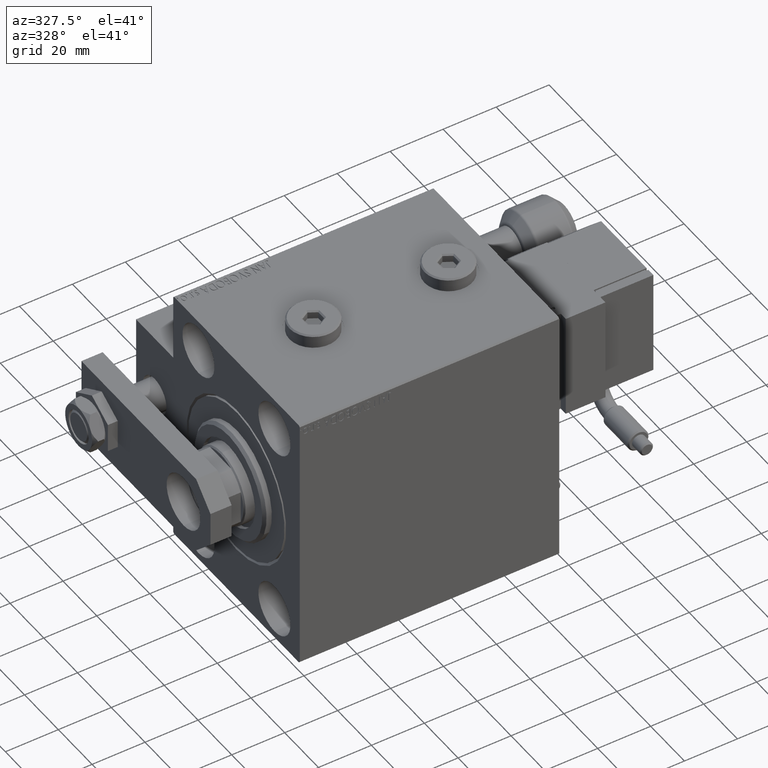
[diagram: clean part render]
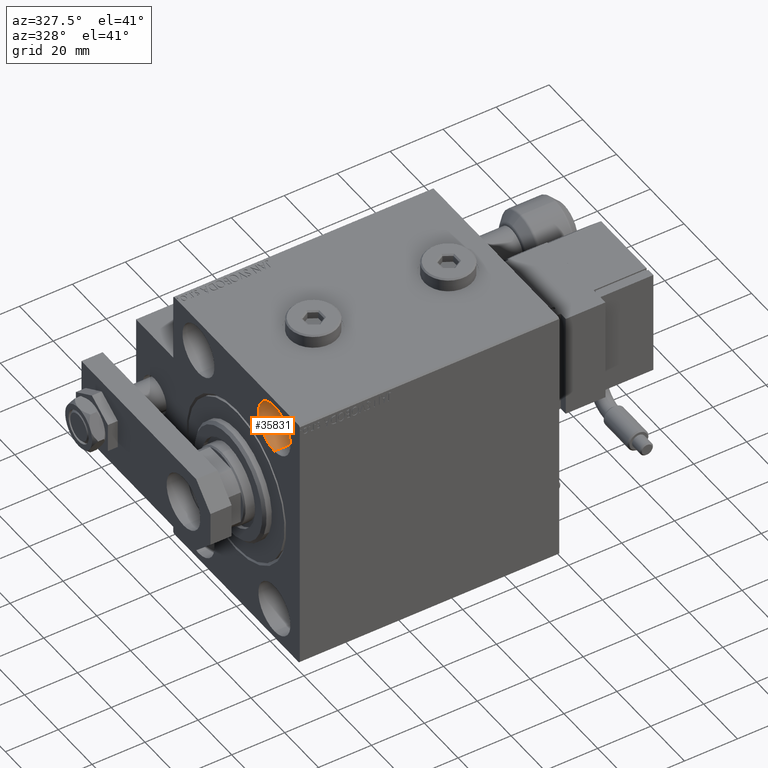
[diagram: same view with one face highlighted and labeled with its STEP entity id]
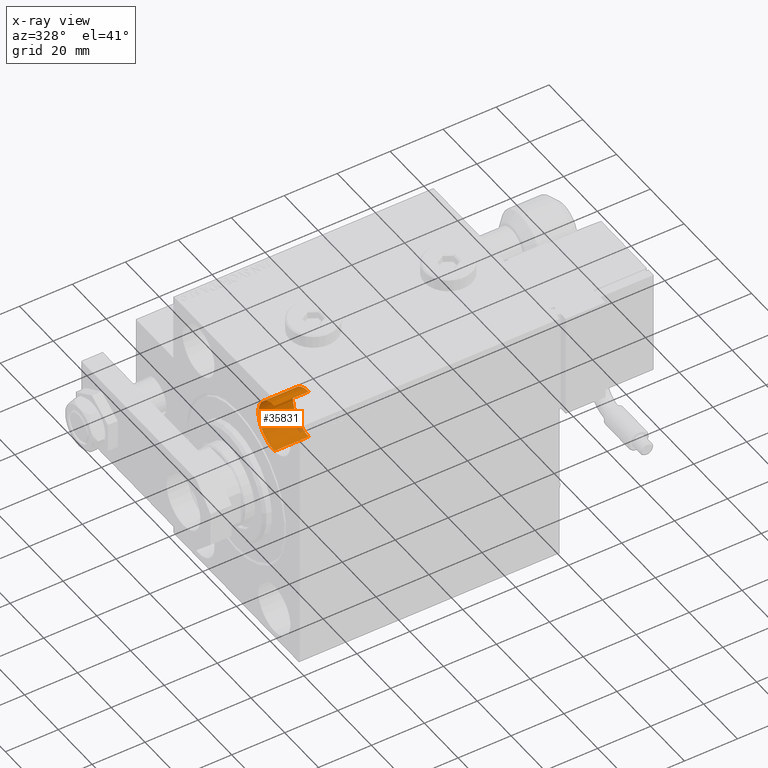
[diagram: x-ray of the same camera — body ghosted, the highlighted face saturated]
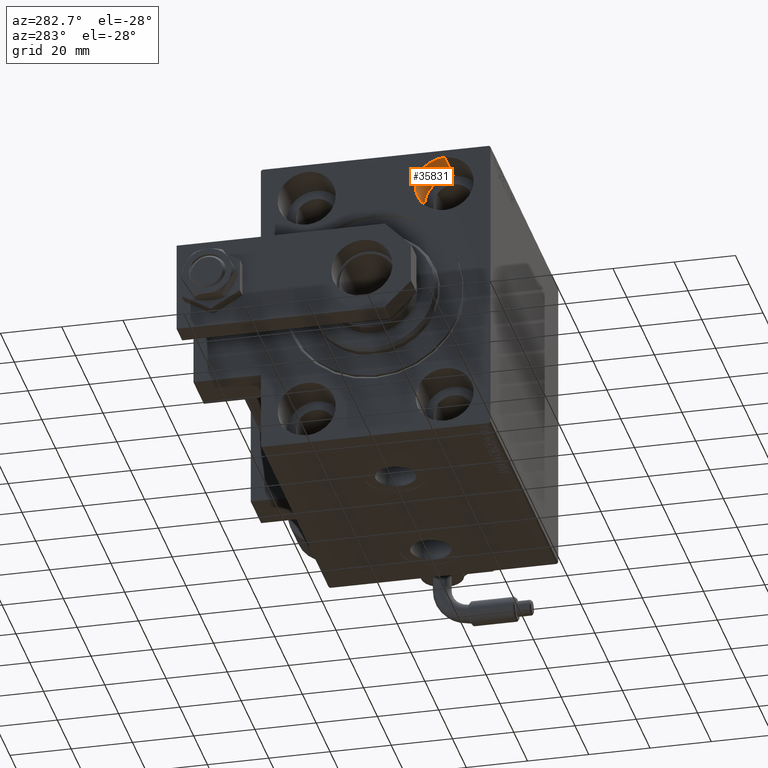
[diagram: same view with one face highlighted and labeled with its STEP entity id]
A machine part, auxiliary view. The second image highlights one B-rep face of the part: STEP entity #35831.
The next image is the same camera in x-ray: the body ghosted, the highlighted face saturated — about 4% of this face is hidden behind the body in this view.
A second angle (auxiliary view) of the same face is appended — the face is thin or edge-on in the first view.
In plain terms, the highlighted cylindrical surface (edge-blend (fillet) strip) has radius 9.5 mm, axis along (-1, -0, -0).
Its self-contained STEP definition (entity closure, byte-faithful):
#811 = DIRECTION ( 'NONE',  ( 0.000000000000000000, 0.000000000000000000, 1.000000000000000000 ) ) ;
#2656 = ORIENTED_EDGE ( 'NONE', *, *, #19246, .F. ) ;
#3446 = CARTESIAN_POINT ( 'NONE',  ( 0.000000000000000000, -22.49999999999999645, 37.99999999999999289 ) ) ;
#5285 = VERTEX_POINT ( 'NONE', #28135 ) ;
#8536 = CYLINDRICAL_SURFACE ( 'NONE', #49225, 9.500000000000001776 ) ;
#10919 = CIRCLE ( 'NONE', #49076, 9.500000000000001776 ) ;
#12055 = DIRECTION ( 'NONE',  ( 0.000000000000000000, 0.000000000000000000, 1.000000000000000000 ) ) ;
#12578 = CARTESIAN_POINT ( 'NONE',  ( 13.00000000000000000, -22.49999999999999645, 37.99999999999999289 ) ) ;
#13090 = AXIS2_PLACEMENT_3D ( 'NONE', #3446, #15415, #27121 ) ;
#15064 = EDGE_CURVE ( 'NONE', #41310, #5285, #52098, .T. ) ;
#15415 = DIRECTION ( 'NONE',  ( -1.000000000000000000, 0.000000000000000000, 0.000000000000000000 ) ) ;
#15481 = CARTESIAN_POINT ( 'NONE',  ( 0.000000000000000000, -22.49999999999999645, 47.49999999999999289 ) ) ;
#16553 = DIRECTION ( 'NONE',  ( -1.000000000000000000, 0.000000000000000000, 0.000000000000000000 ) ) ;
#19191 = CARTESIAN_POINT ( 'NONE',  ( 13.00000000000000000, -22.49999999999999645, 47.49999999999999289 ) ) ;
#19246 = EDGE_CURVE ( 'NONE', #26514, #5285, #47700, .T. ) ;
#22091 = VERTEX_POINT ( 'NONE', #19191 ) ;
#25476 = ORIENTED_EDGE ( 'NONE', *, *, #32627, .T. ) ;
#25679 = LINE ( 'NONE', #41876, #28775 ) ;
#26121 = EDGE_LOOP ( 'NONE', ( #2656, #29680, #25476, #29599 ) ) ;
#26514 = VERTEX_POINT ( 'NONE', #38518 ) ;
#27121 = DIRECTION ( 'NONE',  ( 0.000000000000000000, 0.000000000000000000, 1.000000000000000000 ) ) ;
#28135 = CARTESIAN_POINT ( 'NONE',  ( 0.000000000000000000, -22.49999999999999645, 28.49999999999998934 ) ) ;
#28775 = VECTOR ( 'NONE', #33111, 1000.000000000000000 ) ;
#29002 = CARTESIAN_POINT ( 'NONE',  ( 13.00000000000000000, -22.49999999999999645, 37.99999999999999289 ) ) ;
#29526 = FACE_OUTER_BOUND ( 'NONE', #26121, .T. ) ;
#29599 = ORIENTED_EDGE ( 'NONE', *, *, #15064, .T. ) ;
#29680 = ORIENTED_EDGE ( 'NONE', *, *, #30836, .F. ) ;
#30836 = EDGE_CURVE ( 'NONE', #22091, #26514, #10919, .T. ) ;
#32627 = EDGE_CURVE ( 'NONE', #22091, #41310, #25679, .T. ) ;
#33111 = DIRECTION ( 'NONE',  ( -1.000000000000000000, -0.000000000000000000, -0.000000000000000000 ) ) ;
#35831 = ADVANCED_FACE ( 'NONE', ( #29526 ), #8536, .F. ) ;
#38518 = CARTESIAN_POINT ( 'NONE',  ( 13.00000000000000000, -22.49999999999999645, 28.49999999999998934 ) ) ;
#40295 = VECTOR ( 'NONE', #43718, 1000.000000000000000 ) ;
#41201 = DIRECTION ( 'NONE',  ( -1.000000000000000000, -0.000000000000000000, -0.000000000000000000 ) ) ;
#41310 = VERTEX_POINT ( 'NONE', #15481 ) ;
#41876 = CARTESIAN_POINT ( 'NONE',  ( 13.00000000000000000, -22.49999999999999645, 47.49999999999999289 ) ) ;
#43718 = DIRECTION ( 'NONE',  ( -1.000000000000000000, -0.000000000000000000, -0.000000000000000000 ) ) ;
#47700 = LINE ( 'NONE', #51174, #40295 ) ;
#49076 = AXIS2_PLACEMENT_3D ( 'NONE', #12578, #16553, #12055 ) ;
#49225 = AXIS2_PLACEMENT_3D ( 'NONE', #29002, #41201, #811 ) ;
#51174 = CARTESIAN_POINT ( 'NONE',  ( 13.00000000000000000, -22.49999999999999645, 28.49999999999998934 ) ) ;
#52098 = CIRCLE ( 'NONE', #13090, 9.500000000000001776 ) ;